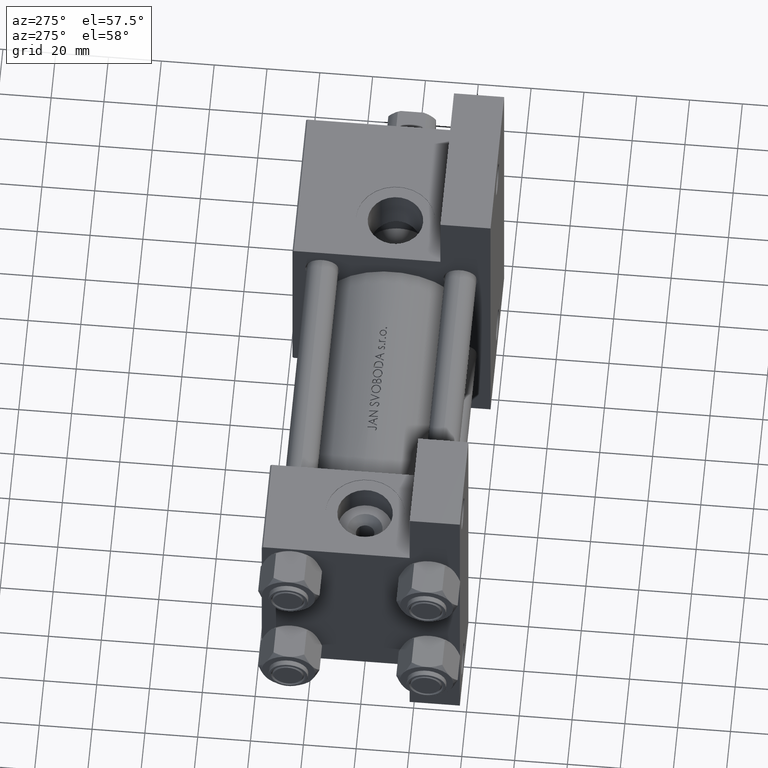
[diagram: clean part render]
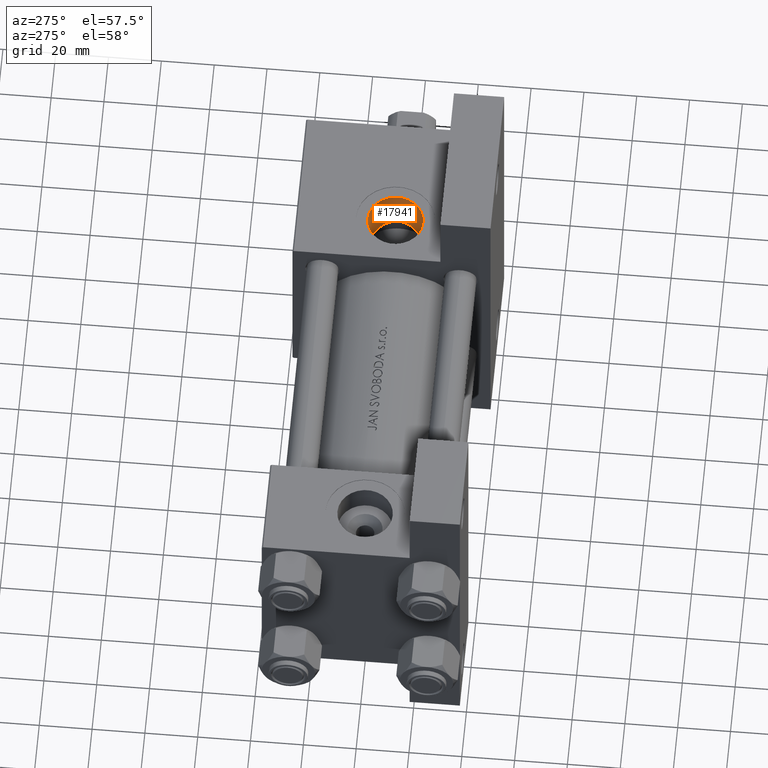
[diagram: same view with one face highlighted and labeled with its STEP entity id]
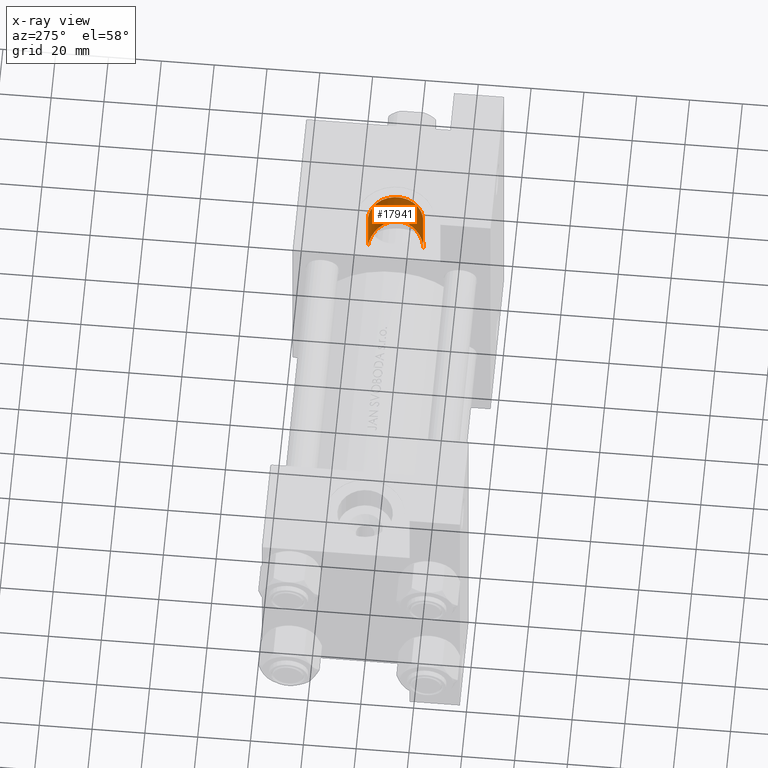
[diagram: x-ray of the same camera — body ghosted, the highlighted face saturated]
A machine part, auxiliary view. The second image highlights one B-rep face of the part: STEP entity #17941.
The next image is the same camera in x-ray: the body ghosted, the highlighted face saturated — about 0% of this face is hidden behind the body in this view.
In plain terms, the highlighted cylindrical surface (edge-blend (fillet) strip) has radius 10.48 mm, axis along (-0, -0, 1).
Its self-contained STEP definition (entity closure, byte-faithful):
#44 = CARTESIAN_POINT ( 'NONE',  ( 156.3953719826939732, -18.50579674927558571, 8.329556230503516900 ) ) ;
#2801 = CARTESIAN_POINT ( 'NONE',  ( 158.9026386617618130, -19.87300753805846654, -5.539771893847126094 ) ) ;
#2968 = AXIS2_PLACEMENT_3D ( 'NONE', #9364, #38120, #30649 ) ;
#3048 = CARTESIAN_POINT ( 'NONE',  ( 153.4159050215026525, -17.65012615064442869, 9.931528811289364711 ) ) ;
#3300 = CARTESIAN_POINT ( 'NONE',  ( 156.9416544847751425, -19.13207627753017093, -7.880695095096321268 ) ) ;
#3540 = CARTESIAN_POINT ( 'NONE',  ( 158.3225662003738137, -19.64111042044597966, -6.378170050295204341 ) ) ;
#3694 = CARTESIAN_POINT ( 'NONE',  ( 150.0000000000000284, -17.31154528053461306, 10.47999999999999154 ) ) ;
#5947 = VERTEX_POINT ( 'NONE', #3694 ) ;
#6692 = EDGE_CURVE ( 'NONE', #12086, #31575, #10305, .T. ) ;
#6768 = CARTESIAN_POINT ( 'NONE',  ( 158.2943842801270193, -19.29805340160766747, 6.441284550439725365 ) ) ;
#7012 = CARTESIAN_POINT ( 'NONE',  ( 150.7047145583874794, -17.91665127801143953, -10.46219065497899692 ) ) ;
#7513 = CARTESIAN_POINT ( 'NONE',  ( 159.9112922687107812, -20.12166452589491428, 3.472274471029884957 ) ) ;
#7750 = CARTESIAN_POINT ( 'NONE',  ( 151.3951252308203550, -17.36667489365846606, 10.39267281819420319 ) ) ;
#8237 = B_SPLINE_CURVE_WITH_KNOTS ( 'NONE', 3,
 ( #25714, #26455, #29701, #7750, #22476, #14510, #3048, #11491, #33195, #44, #17989, #15237, #6768, #37920, #25963, #26700, #44889, #7513, #41898, #18228, #18963, #30183, #37678, #41654, #34172, #41164, #30437, #29451, #45631, #14987, #44649, #36934, #2801, #48372, #3540, #18722, #14260, #3300, #10510, #33930, #21985, #37181, #33443, #18481, #48629, #7012, #22226, #49110 ),
 .UNSPECIFIED., .F., .F.,
 ( 4, 2, 2, 2, 2, 2, 2, 2, 2, 2, 2, 2, 2, 2, 2, 2, 2, 2, 2, 2, 2, 2, 2, 4 ),
 ( 0.03337172289375579803, 0.03441233523662728944, 0.03545294757949878778, 0.03753417226524177058, 0.03961539695098476033, 0.04169662163672774313, 0.04377784632247073981, 0.04481845866534223122, 0.04585907100821372262, 0.04794029569395671930, 0.04898090803682821071, 0.05002152037969970211, 0.05106213272257120045, 0.05210274506544269879, 0.05418396975118568160, 0.05522458209405717994, 0.05626519443692867134, 0.05730580677980016968, 0.05834641912267166108, 0.06042764380841469940, 0.06250886849415773772, 0.06459009317990078991, 0.06563070552277235070, 0.06667131786564391149 ),
 .UNSPECIFIED. ) ;
#8515 = ORIENTED_EDGE ( 'NONE', *, *, #26220, .T. ) ;
#9364 = CARTESIAN_POINT ( 'NONE',  ( 150.0000000000000284, -37.29999999999999716, 3.486794186713383443E-15 ) ) ;
#9645 = CARTESIAN_POINT ( 'NONE',  ( 150.0000000000000284, -37.29999999999999716, 10.47999999999998977 ) ) ;
#10060 = DIRECTION ( 'NONE',  ( -0.000000000000000000, -1.000000000000000000, -8.673617379884036705E-17 ) ) ;
#10305 = LINE ( 'NONE', #36741, #38215 ) ;
#10510 = CARTESIAN_POINT ( 'NONE',  ( 156.4217440813015401, -18.95863385658994815, -8.309672003124298101 ) ) ;
#11491 = CARTESIAN_POINT ( 'NONE',  ( 154.6848851208464168, -17.95378683072778259, 9.399761861338273405 ) ) ;
#12086 = VERTEX_POINT ( 'NONE', #33429 ) ;
#14260 = CARTESIAN_POINT ( 'NONE',  ( 157.6611621740133273, -19.38999619374664363, -7.159076384942104632 ) ) ;
#14410 = CARTESIAN_POINT ( 'NONE',  ( 150.0000000000000284, 37.50100000000000477, 9.974746723040443104E-15 ) ) ;
#14510 = CARTESIAN_POINT ( 'NONE',  ( 152.7588417203788822, -17.52693762274574851, 10.13402779325157077 ) ) ;
#14987 = CARTESIAN_POINT ( 'NONE',  ( 159.5516556862485515, -20.14238090880650134, -4.326202217588882348 ) ) ;
#15237 = CARTESIAN_POINT ( 'NONE',  ( 157.8679744497729871, -19.10325731143032968, 6.954996736502839561 ) ) ;
#17941 = ADVANCED_FACE ( 'NONE', ( #37088 ), #22616, .F. ) ;
#17989 = CARTESIAN_POINT ( 'NONE',  ( 156.9208345979154160, -18.70786800614511236, 7.898040897294844598 ) ) ;
#18228 = CARTESIAN_POINT ( 'NONE',  ( 160.3311065042815358, -20.37409322011633606, 1.794586109409245456 ) ) ;
#18481 = CARTESIAN_POINT ( 'NONE',  ( 151.7534701870718834, -17.98521153983802634, -10.33810977386607100 ) ) ;
#18722 = CARTESIAN_POINT ( 'NONE',  ( 157.8913372837819225, -19.47582360453931116, -6.904560610471913940 ) ) ;
#18963 = CARTESIAN_POINT ( 'NONE',  ( 160.3852102648228879, -20.41012014665353291, 1.448585321857994712 ) ) ;
#20969 = ORIENTED_EDGE ( 'NONE', *, *, #34646, .T. ) ;
#21985 = CARTESIAN_POINT ( 'NONE',  ( 154.6885837709134819, -18.47081169218747831, -9.397559365377063045 ) ) ;
#22085 = EDGE_CURVE ( 'NONE', #5947, #46212, #25357, .T. ) ;
#22226 = CARTESIAN_POINT ( 'NONE',  ( 150.3524141148301680, -17.90669148670408362, -10.47999999999997556 ) ) ;
#22476 = CARTESIAN_POINT ( 'NONE',  ( 151.7410054315664070, -17.39963274831551132, 10.34017078318249361 ) ) ;
#22616 = CYLINDRICAL_SURFACE ( 'NONE', #46502, 10.47999999999998622 ) ;
#25357 = LINE ( 'NONE', #25858, #48930 ) ;
#25714 = CARTESIAN_POINT ( 'NONE',  ( 150.0000000000000284, -17.31154528053461306, 10.47999999999999154 ) ) ;
#25858 = CARTESIAN_POINT ( 'NONE',  ( 150.0000000000000284, 37.50100000000000477, 10.47999999999999687 ) ) ;
#25963 = CARTESIAN_POINT ( 'NONE',  ( 159.0415136392023783, -19.66186875787549226, 5.310054482731721315 ) ) ;
#26115 = DIRECTION ( 'NONE',  ( 0.000000000000000000, 0.000000000000000000, -1.000000000000000000 ) ) ;
#26220 = EDGE_CURVE ( 'NONE', #5947, #12086, #8237, .T. ) ;
#26455 = CARTESIAN_POINT ( 'NONE',  ( 150.3470210746793327, -17.31154528053460595, 10.47999999999999510 ) ) ;
#26700 = CARTESIAN_POINT ( 'NONE',  ( 159.3662177968320179, -19.82832408839749760, 4.713768309937338863 ) ) ;
#28608 = ORIENTED_EDGE ( 'NONE', *, *, #22085, .F. ) ;
#29451 = CARTESIAN_POINT ( 'NONE',  ( 160.1488622720015940, -20.39261420473474473, -2.705221023230776289 ) ) ;
#29603 = DIRECTION ( 'NONE',  ( -0.000000000000000000, -1.000000000000000000, -8.673617379884036705E-17 ) ) ;
#29701 = CARTESIAN_POINT ( 'NONE',  ( 150.6954312938289604, -17.32248566803110990, 10.46281023584331393 ) ) ;
#30183 = CARTESIAN_POINT ( 'NONE',  ( 160.4583245133796936, -20.46430137750835954, 0.7579182357777466406 ) ) ;
#30437 = CARTESIAN_POINT ( 'NONE',  ( 160.3507038963579134, -20.46901633175582447, -1.677836523642098010 ) ) ;
#30649 = DIRECTION ( 'NONE',  ( 0.000000000000000000, 0.000000000000000000, -1.000000000000000000 ) ) ;
#31575 = VERTEX_POINT ( 'NONE', #48525 ) ;
#33195 = CARTESIAN_POINT ( 'NONE',  ( 155.2787600379286346, -18.12953982762253347, 9.078379935655647159 ) ) ;
#33429 = CARTESIAN_POINT ( 'NONE',  ( 150.0000000000000284, -17.90669148670408362, -10.47999999999998089 ) ) ;
#33443 = CARTESIAN_POINT ( 'NONE',  ( 152.7750123670571440, -18.09812027575558702, -10.12979723076933425 ) ) ;
#33930 = CARTESIAN_POINT ( 'NONE',  ( 155.2983228447829163, -18.62849765410346947, -9.067371222007592380 ) ) ;
#34172 = CARTESIAN_POINT ( 'NONE',  ( 160.4669051482524367, -20.50255402113294068, -0.6300211231001662249 ) ) ;
#34646 = EDGE_CURVE ( 'NONE', #31575, #46212, #34791, .T. ) ;
#34791 = CIRCLE ( 'NONE', #2968, 10.47999999999998622 ) ;
#34944 = ORIENTED_EDGE ( 'NONE', *, *, #6692, .T. ) ;
#36741 = CARTESIAN_POINT ( 'NONE',  ( 150.0000000000000284, 37.50100000000000477, -10.47999999999997556 ) ) ;
#36934 = CARTESIAN_POINT ( 'NONE',  ( 159.0783182432222134, -19.94519646484593167, -5.247152792081113404 ) ) ;
#37088 = FACE_OUTER_BOUND ( 'NONE', #39562, .T. ) ;
#37181 = CARTESIAN_POINT ( 'NONE',  ( 153.4291236246859000, -18.20648317701849095, -9.926633415679276595 ) ) ;
#37678 = CARTESIAN_POINT ( 'NONE',  ( 160.4776551375226177, -20.48265569949337461, 0.4117595292702391774 ) ) ;
#37920 = CARTESIAN_POINT ( 'NONE',  ( 158.8632463434475426, -19.57285682509593272, 5.602446212762891342 ) ) ;
#38120 = DIRECTION ( 'NONE',  ( 0.000000000000000000, -1.000000000000000000, -8.673617379884036705E-17 ) ) ;
#38215 = VECTOR ( 'NONE', #10060, 1000.000000000000000 ) ;
#39562 = EDGE_LOOP ( 'NONE', ( #28608, #8515, #34944, #20969 ) ) ;
#40557 = DIRECTION ( 'NONE',  ( -0.000000000000000000, -1.000000000000000000, -8.673617379884036705E-17 ) ) ;
#41164 = CARTESIAN_POINT ( 'NONE',  ( 160.4015008588858393, -20.48626732390679805, -1.327331865308766901 ) ) ;
#41654 = CARTESIAN_POINT ( 'NONE',  ( 160.4819445000526343, -20.50178181377810915, -0.2822101851753042179 ) ) ;
#41898 = CARTESIAN_POINT ( 'NONE',  ( 160.1175830810126399, -20.24111318549747551, 2.820020607438576743 ) ) ;
#44649 = CARTESIAN_POINT ( 'NONE',  ( 159.4025389929008441, -20.07976061505709708, -4.641199740976985844 ) ) ;
#44889 = CARTESIAN_POINT ( 'NONE',  ( 159.5136165929028209, -19.90621515629138827, 4.408684660160838042 ) ) ;
#45631 = CARTESIAN_POINT ( 'NONE',  ( 159.9485359727863454, -20.30891902702526153, -3.366903607565236989 ) ) ;
#46212 = VERTEX_POINT ( 'NONE', #9645 ) ;
#46502 = AXIS2_PLACEMENT_3D ( 'NONE', #14410, #29603, #26115 ) ;
#48372 = CARTESIAN_POINT ( 'NONE',  ( 158.5247630629397122, -19.72096722719661344, -6.105281524917115732 ) ) ;
#48525 = CARTESIAN_POINT ( 'NONE',  ( 150.0000000000000284, -37.29999999999999716, -10.47999999999998266 ) ) ;
#48629 = CARTESIAN_POINT ( 'NONE',  ( 151.4044395936603564, -17.95581939429250085, -10.39141979412303840 ) ) ;
#48930 = VECTOR ( 'NONE', #40557, 1000.000000000000000 ) ;
#49110 = CARTESIAN_POINT ( 'NONE',  ( 150.0000000000000284, -17.90669148670408362, -10.47999999999998089 ) ) ;